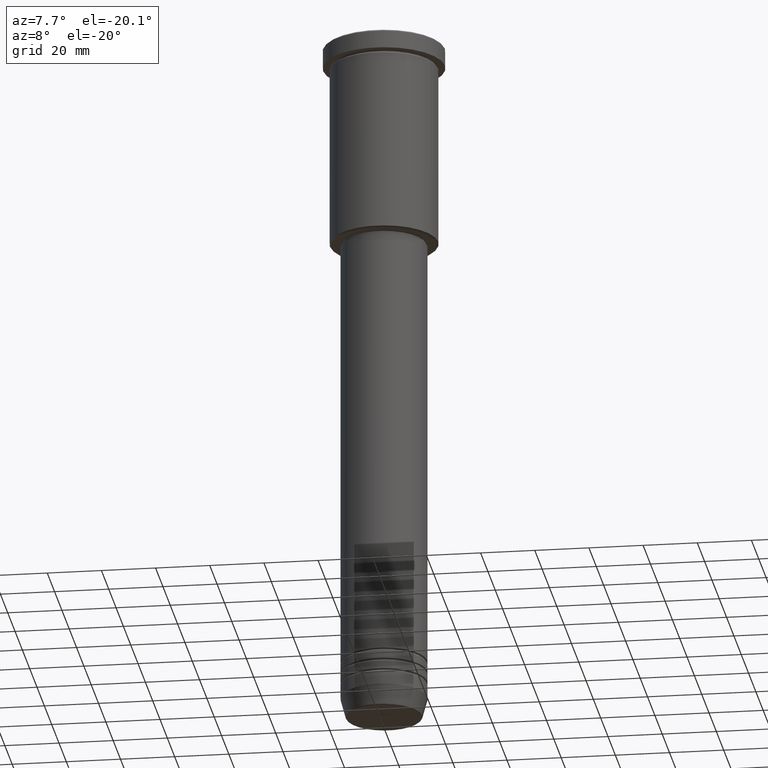
[diagram: clean part render]
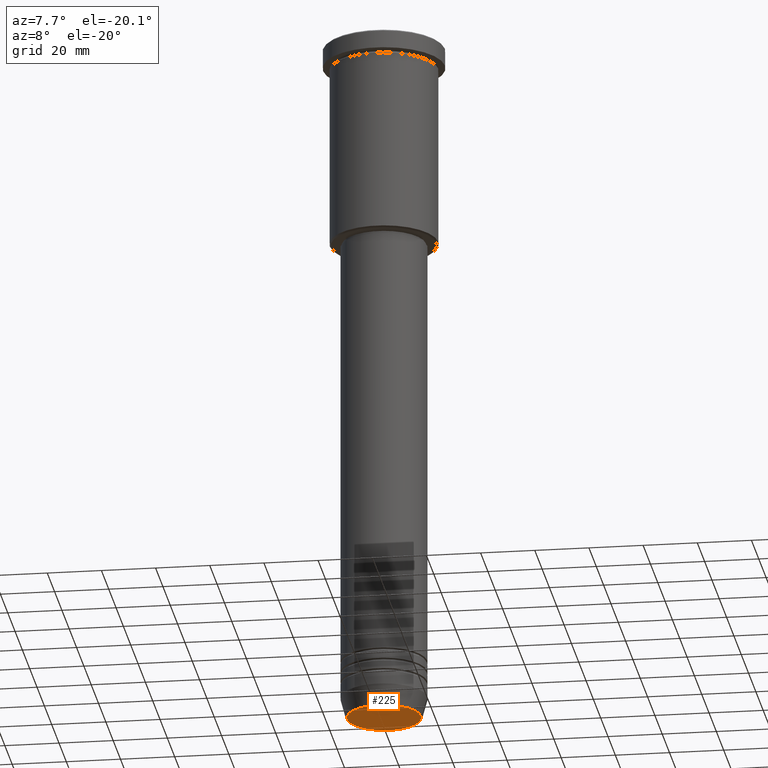
[diagram: same view with one face highlighted and labeled with its STEP entity id]
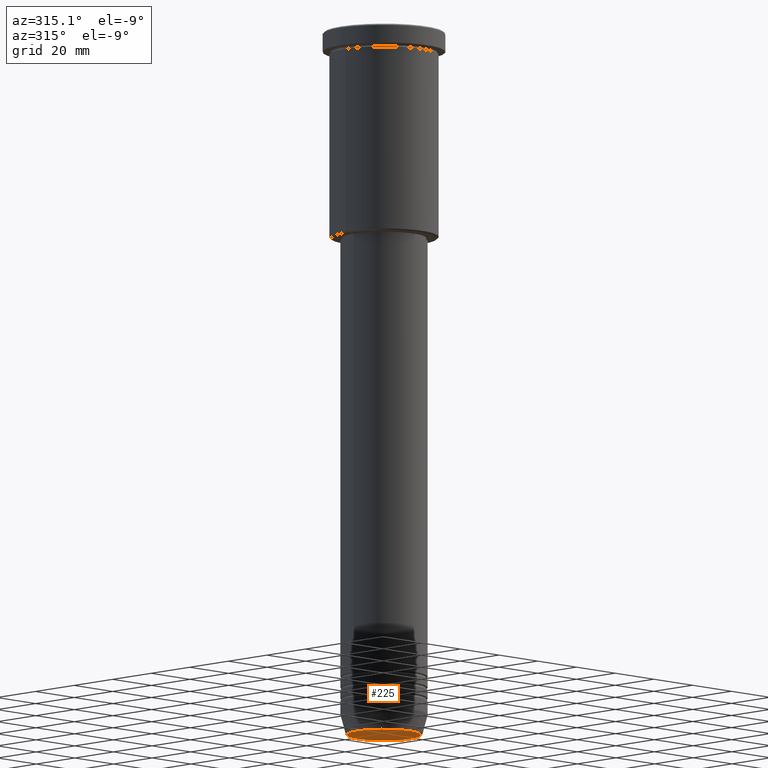
[diagram: same view with one face highlighted and labeled with its STEP entity id]
A machine part, auxiliary view. The second image highlights one B-rep face of the part: STEP entity #225.
A second angle (auxiliary view) of the same face is appended — the face is thin or edge-on in the first view.
In plain terms, the highlighted planar face has unit normal (0, -0, 1).
Its self-contained STEP definition (entity closure, byte-faithful):
#29 = CARTESIAN_POINT ( 'NONE',  ( 0.000000000000000000, 0.000000000000000000, -260.0000000000000000 ) ) ;
#42 = AXIS2_PLACEMENT_3D ( 'NONE', #29, #489, #655 ) ;
#107 = DIRECTION ( 'NONE',  ( 1.000000000000000000, 0.000000000000000000, 0.000000000000000000 ) ) ;
#163 = EDGE_CURVE ( 'NONE', #512, #397, #826, .T. ) ;
#225 = ADVANCED_FACE ( 'NONE', ( #572 ), #942, .F. ) ;
#245 = EDGE_CURVE ( 'NONE', #397, #512, #1087, .T. ) ;
#274 = CARTESIAN_POINT ( 'NONE',  ( 0.000000000000000000, 0.000000000000000000, -260.0000000000000000 ) ) ;
#324 = AXIS2_PLACEMENT_3D ( 'NONE', #274, #818, #107 ) ;
#397 = VERTEX_POINT ( 'NONE', #598 ) ;
#464 = EDGE_LOOP ( 'NONE', ( #906, #1032 ) ) ;
#489 = DIRECTION ( 'NONE',  ( 0.000000000000000000, -0.000000000000000000, 1.000000000000000000 ) ) ;
#512 = VERTEX_POINT ( 'NONE', #1163 ) ;
#572 = FACE_OUTER_BOUND ( 'NONE', #464, .T. ) ;
#598 = CARTESIAN_POINT ( 'NONE',  ( 13.60671756277709399, 0.000000000000000000, -260.0000000000000000 ) ) ;
#655 = DIRECTION ( 'NONE',  ( 1.000000000000000000, 0.000000000000000000, 0.000000000000000000 ) ) ;
#729 = DIRECTION ( 'NONE',  ( 1.000000000000000000, 0.000000000000000000, 0.000000000000000000 ) ) ;
#734 = CARTESIAN_POINT ( 'NONE',  ( 0.000000000000000000, 0.000000000000000000, -260.0000000000000000 ) ) ;
#818 = DIRECTION ( 'NONE',  ( 0.000000000000000000, 0.000000000000000000, -1.000000000000000000 ) ) ;
#826 = CIRCLE ( 'NONE', #1018, 13.60671756277709399 ) ;
#906 = ORIENTED_EDGE ( 'NONE', *, *, #245, .T. ) ;
#942 = PLANE ( 'NONE',  #42 ) ;
#1018 = AXIS2_PLACEMENT_3D ( 'NONE', #734, #1173, #729 ) ;
#1032 = ORIENTED_EDGE ( 'NONE', *, *, #163, .T. ) ;
#1087 = CIRCLE ( 'NONE', #324, 13.60671756277709399 ) ;
#1163 = CARTESIAN_POINT ( 'NONE',  ( -13.60671756277709399, 1.695915260300171258E-15, -260.0000000000000000 ) ) ;
#1173 = DIRECTION ( 'NONE',  ( 0.000000000000000000, 0.000000000000000000, -1.000000000000000000 ) ) ;